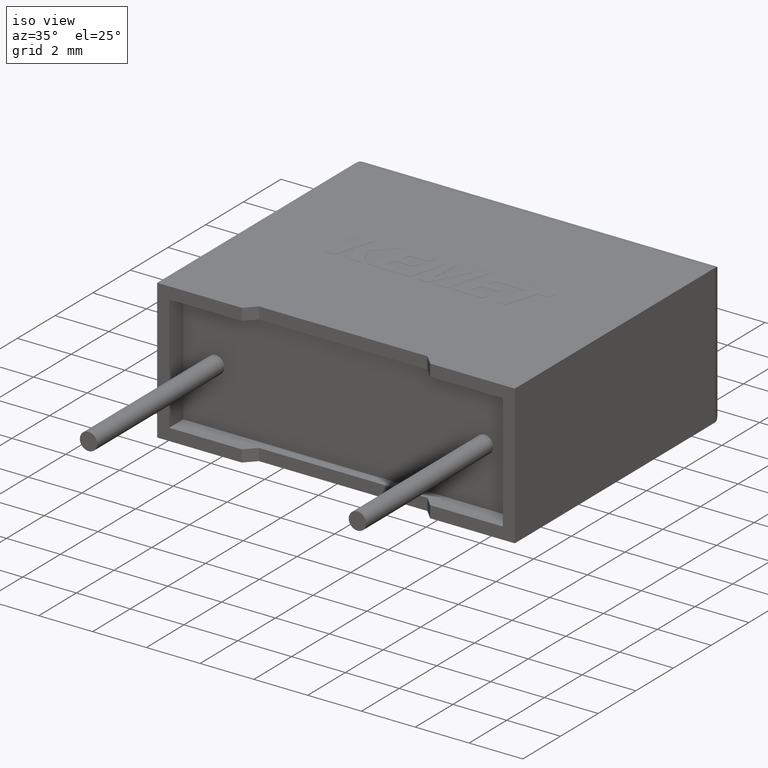
[diagram: clean part render]
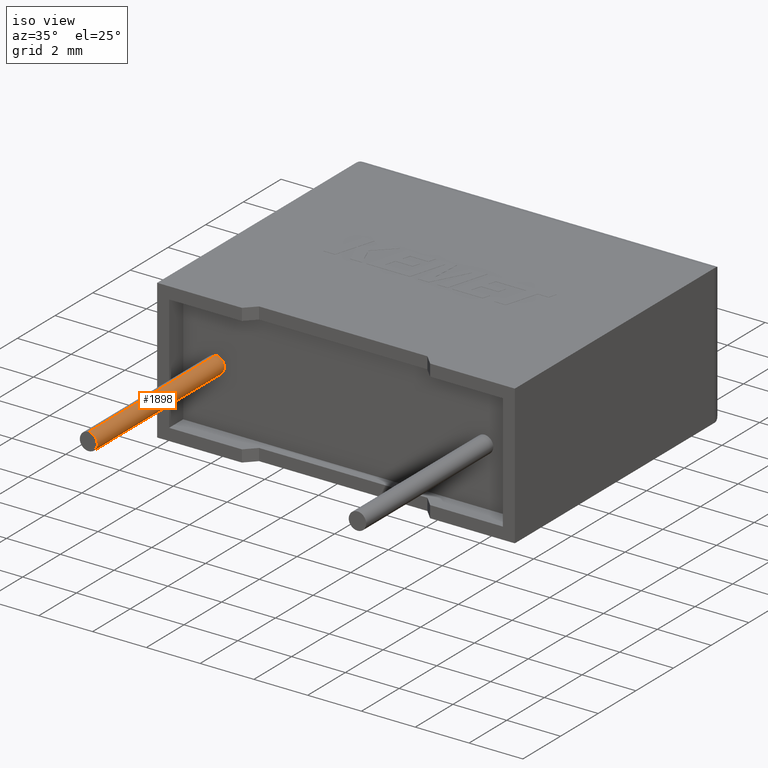
[diagram: same view with one face highlighted and labeled with its STEP entity id]
A machine part, iso view. The second image highlights one B-rep face of the part: STEP entity #1898.
In plain terms, the highlighted cylindrical surface (edge-blend (fillet) strip) has radius 0.325 mm, axis along (-0, 1, -0).
Its self-contained STEP definition (entity closure, byte-faithful):
#6 = CIRCLE ( 'NONE', #2970, 0.3250000000000006217 ) ;
#57 = ORIENTED_EDGE ( 'NONE', *, *, #514, .T. ) ;
#118 = CIRCLE ( 'NONE', #398, 0.3250000000000006217 ) ;
#274 = CARTESIAN_POINT ( 'NONE',  ( 1.650000000000000355, -6.000000000000000000, 2.600000000000000089 ) ) ;
#315 = VERTEX_POINT ( 'NONE', #1345 ) ;
#363 = DIRECTION ( 'NONE',  ( 0.000000000000000000, 0.000000000000000000, -1.000000000000000000 ) ) ;
#398 = AXIS2_PLACEMENT_3D ( 'NONE', #2947, #874, #363 ) ;
#422 = VERTEX_POINT ( 'NONE', #1582 ) ;
#434 = DIRECTION ( 'NONE',  ( 0.000000000000000000, -1.000000000000000000, 0.000000000000000000 ) ) ;
#435 = ORIENTED_EDGE ( 'NONE', *, *, #1533, .F. ) ;
#448 = CYLINDRICAL_SURFACE ( 'NONE', #2037, 0.3250000000000006217 ) ;
#467 = LINE ( 'NONE', #1420, #2776 ) ;
#491 = CARTESIAN_POINT ( 'NONE',  ( 1.650000000000000355, -6.000000000000000000, 2.925000000000000711 ) ) ;
#514 = EDGE_CURVE ( 'NONE', #315, #422, #467, .T. ) ;
#680 = CARTESIAN_POINT ( 'NONE',  ( 1.650000000000000355, 0.7500000000000000000, 2.925000000000000711 ) ) ;
#689 = ORIENTED_EDGE ( 'NONE', *, *, #2258, .F. ) ;
#755 = DIRECTION ( 'NONE',  ( -0.000000000000000000, 1.000000000000000000, -0.000000000000000000 ) ) ;
#846 = EDGE_LOOP ( 'NONE', ( #435, #57, #2988, #689 ) ) ;
#874 = DIRECTION ( 'NONE',  ( 0.000000000000000000, -1.000000000000000000, 0.000000000000000000 ) ) ;
#1345 = CARTESIAN_POINT ( 'NONE',  ( 1.650000000000000355, -6.000000000000000000, 2.274999999999999467 ) ) ;
#1420 = CARTESIAN_POINT ( 'NONE',  ( 1.650000000000000355, -6.000000000000000000, 2.274999999999999467 ) ) ;
#1533 = EDGE_CURVE ( 'NONE', #315, #2558, #6, .T. ) ;
#1582 = CARTESIAN_POINT ( 'NONE',  ( 1.650000000000000355, 0.7500000000000000000, 2.274999999999999467 ) ) ;
#1635 = DIRECTION ( 'NONE',  ( 0.000000000000000000, 0.000000000000000000, 1.000000000000000000 ) ) ;
#1681 = EDGE_CURVE ( 'NONE', #422, #2504, #118, .T. ) ;
#1898 = ADVANCED_FACE ( 'NONE', ( #2102 ), #448, .T. ) ;
#2037 = AXIS2_PLACEMENT_3D ( 'NONE', #2351, #2598, #1635 ) ;
#2102 = FACE_OUTER_BOUND ( 'NONE', #846, .T. ) ;
#2221 = CARTESIAN_POINT ( 'NONE',  ( 1.650000000000000355, -6.000000000000000000, 2.925000000000000711 ) ) ;
#2258 = EDGE_CURVE ( 'NONE', #2558, #2504, #2613, .T. ) ;
#2262 = VECTOR ( 'NONE', #755, 1000.000000000000000 ) ;
#2327 = DIRECTION ( 'NONE',  ( 0.000000000000000000, 0.000000000000000000, -1.000000000000000000 ) ) ;
#2332 = DIRECTION ( 'NONE',  ( -0.000000000000000000, 1.000000000000000000, -0.000000000000000000 ) ) ;
#2351 = CARTESIAN_POINT ( 'NONE',  ( 1.650000000000000355, -6.000000000000000000, 2.600000000000000089 ) ) ;
#2504 = VERTEX_POINT ( 'NONE', #680 ) ;
#2558 = VERTEX_POINT ( 'NONE', #2221 ) ;
#2598 = DIRECTION ( 'NONE',  ( -0.000000000000000000, 1.000000000000000000, -0.000000000000000000 ) ) ;
#2613 = LINE ( 'NONE', #491, #2262 ) ;
#2776 = VECTOR ( 'NONE', #2332, 1000.000000000000000 ) ;
#2947 = CARTESIAN_POINT ( 'NONE',  ( 1.650000000000000355, 0.7500000000000000000, 2.600000000000000089 ) ) ;
#2970 = AXIS2_PLACEMENT_3D ( 'NONE', #274, #434, #2327 ) ;
#2988 = ORIENTED_EDGE ( 'NONE', *, *, #1681, .T. ) ;